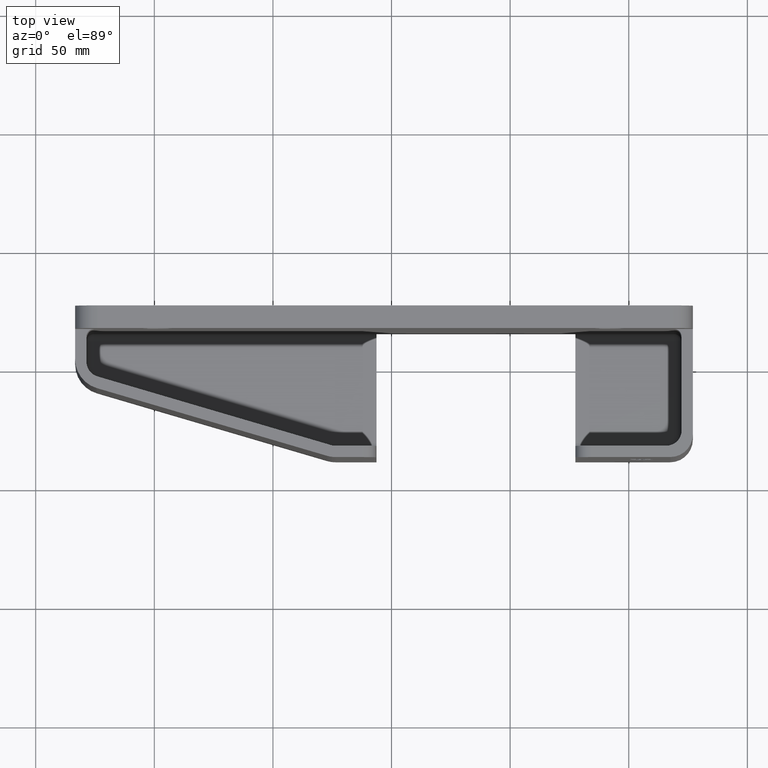
[diagram: clean part render]
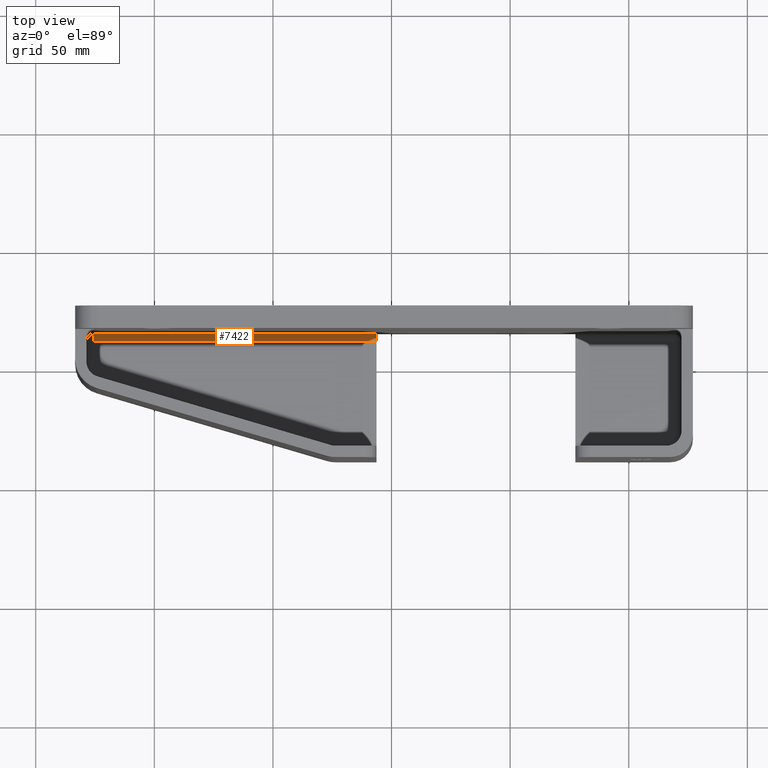
[diagram: same view with one face highlighted and labeled with its STEP entity id]
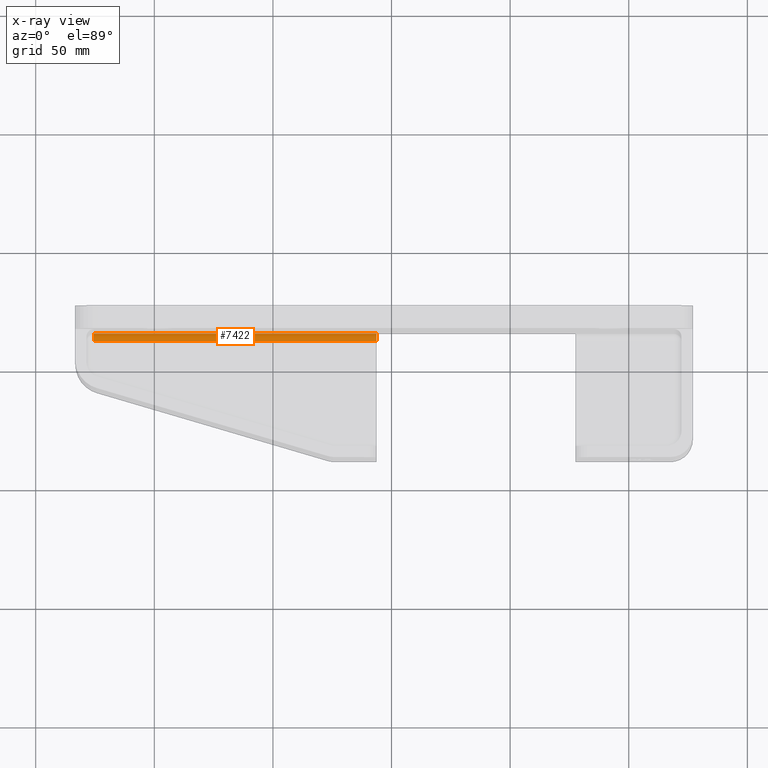
[diagram: x-ray of the same camera — body ghosted, the highlighted face saturated]
A machine part, top view. The second image highlights one B-rep face of the part: STEP entity #7422.
The next image is the same camera in x-ray: the body ghosted, the highlighted face saturated — about 0% of this face is hidden behind the body in this view.
In plain terms, the highlighted cylindrical surface (edge-blend (fillet) strip) has radius 3.175 mm, axis along (1, 0, 0).
Its self-contained STEP definition (entity closure, byte-faithful):
#69 = DIRECTION ( 'NONE',  ( 1.000000000000000000, 1.244892756606500100E-016, 0.0000000000000000000 ) ) ;
#70 = CARTESIAN_POINT ( 'NONE',  ( 4.812102906775091800, 0.6250000000000005600, 0.4999999999999996100 ) ) ;
#155 = DIRECTION ( 'NONE',  ( -1.000000000000000000, -1.244892756606500100E-016, -0.0000000000000000000 ) ) ;
#158 = CARTESIAN_POINT ( 'NONE',  ( -5.062897093224907300, 0.4999999999999993300, 0.3750000000000000600 ) ) ;
#271 = ORIENTED_EDGE ( 'NONE', *, *, #5208, .F. ) ;
#272 = ORIENTED_EDGE ( 'NONE', *, *, #5329, .F. ) ;
#273 = ORIENTED_EDGE ( 'NONE', *, *, #5239, .F. ) ;
#274 = ORIENTED_EDGE ( 'NONE', *, *, #8165, .F. ) ;
#439 = LINE ( 'NONE', #158, #444 ) ;
#444 = VECTOR ( 'NONE', #155, 39.37007874015748100 ) ;
#498 = LINE ( 'NONE', #70, #499 ) ;
#499 = VECTOR ( 'NONE', #69, 39.37007874015748100 ) ;
#1238 = VERTEX_POINT ( 'NONE', #4578 ) ;
#1264 = VERTEX_POINT ( 'NONE', #4549 ) ;
#1316 = VERTEX_POINT ( 'NONE', #4491 ) ;
#1319 = VERTEX_POINT ( 'NONE', #4485 ) ;
#1451 = AXIS2_PLACEMENT_3D ( 'NONE', #3527, #3526, #3525 ) ;
#1788 = CARTESIAN_POINT ( 'NONE',  ( -0.2499999999999976100, 0.5000000000000000000, 0.4999999999999996100 ) ) ;
#1791 = DIRECTION ( 'NONE',  ( 2.731847993664262700E-016, -1.000000000000000000, 0.0000000000000000000 ) ) ;
#1870 = DIRECTION ( 'NONE',  ( -1.000000000000000000, -1.821231995776176200E-016, -1.229331597148918400E-016 ) ) ;
#2264 = CARTESIAN_POINT ( 'NONE',  ( 4.812102906775091800, 0.5000000000000005600, 0.4999999999999996100 ) ) ;
#2266 = DIRECTION ( 'NONE',  ( 1.000000000000000000, 1.244892756606500100E-016, 0.0000000000000000000 ) ) ;
#2383 = DIRECTION ( 'NONE',  ( 0.0000000000000000000, 1.000000000000000000, 0.0000000000000000000 ) ) ;
#3343 = CIRCLE ( 'NONE', #1451, 0.1250000000000000300 ) ;
#3525 = DIRECTION ( 'NONE',  ( 0.0000000000000000000, 0.0000000000000000000, -1.000000000000000000 ) ) ;
#3526 = DIRECTION ( 'NONE',  ( 1.000000000000000000, 0.0000000000000000000, 0.0000000000000000000 ) ) ;
#3527 = CARTESIAN_POINT ( 'NONE',  ( -4.937897093224906400, 0.4999999999999993900, 0.5000000000000000000 ) ) ;
#3954 = FACE_OUTER_BOUND ( 'NONE', #7077, .T. ) ;
#3960 = CYLINDRICAL_SURFACE ( 'NONE', #4934, 0.1249999999999999600 ) ;
#4485 = CARTESIAN_POINT ( 'NONE',  ( -0.2499999999999979500, 0.4999999999999998300, 0.3750000000000000600 ) ) ;
#4491 = CARTESIAN_POINT ( 'NONE',  ( -4.937897093224906400, 0.4999999999999993900, 0.3750000000000000600 ) ) ;
#4549 = CARTESIAN_POINT ( 'NONE',  ( -4.937897093224906400, 0.6249999999999993300, 0.4999999999999996100 ) ) ;
#4578 = CARTESIAN_POINT ( 'NONE',  ( -0.2499999999999983900, 0.6250000000000000000, 0.4999999999999996100 ) ) ;
#4934 = AXIS2_PLACEMENT_3D ( 'NONE', #2264, #2266, #2383 ) ;
#4957 = AXIS2_PLACEMENT_3D ( 'NONE', #1788, #1870, #1791 ) ;
#5208 = EDGE_CURVE ( 'NONE', #1319, #1316, #439, .T. ) ;
#5239 = EDGE_CURVE ( 'NONE', #1264, #1238, #498, .T. ) ;
#5329 = EDGE_CURVE ( 'NONE', #1316, #1264, #3343, .T. ) ;
#7077 = EDGE_LOOP ( 'NONE', ( #274, #273, #272, #271 ) ) ;
#7422 = ADVANCED_FACE ( 'NONE', ( #3954 ), #3960, .F. ) ;
#7550 = CIRCLE ( 'NONE', #4957, 0.1250000000000000300 ) ;
#8165 = EDGE_CURVE ( 'NONE', #1238, #1319, #7550, .T. ) ;